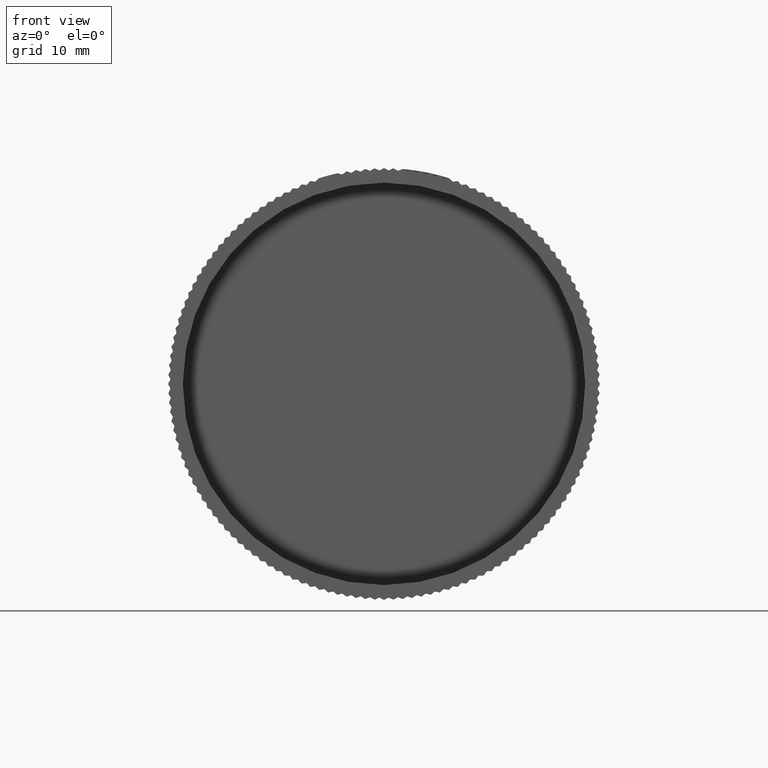
[diagram: clean part render]
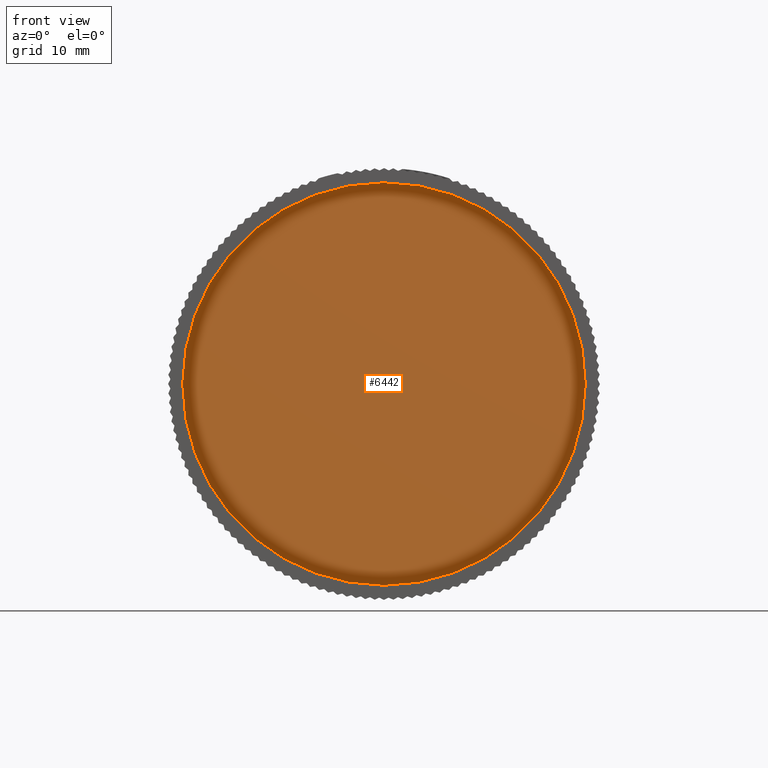
[diagram: same view with one face highlighted and labeled with its STEP entity id]
A machine part, front view. The second image highlights one B-rep face of the part: STEP entity #6442.
In plain terms, the highlighted planar face has unit normal (0, -1, 0).
Its self-contained STEP definition (entity closure, byte-faithful):
#460 = EDGE_CURVE ( 'NONE', #8535, #5071, #23946, .T. ) ;
#962 = DIRECTION ( 'NONE',  ( 0.0000000000000000000, -1.000000000000000000, 0.0000000000000000000 ) ) ;
#5071 = VERTEX_POINT ( 'NONE', #12035 ) ;
#5638 = DIRECTION ( 'NONE',  ( 0.0000000000000000000, -1.000000000000000000, 0.0000000000000000000 ) ) ;
#6442 = ADVANCED_FACE ( 'NONE', ( #32679 ), #42289, .T. ) ;
#7378 = DIRECTION ( 'NONE',  ( 0.0000000000000000000, -0.0000000000000000000, -1.000000000000000000 ) ) ;
#8535 = VERTEX_POINT ( 'NONE', #31650 ) ;
#10471 = ORIENTED_EDGE ( 'NONE', *, *, #460, .T. ) ;
#12035 = CARTESIAN_POINT ( 'NONE',  ( 1.576612217799939400E-016, 0.3779527559055118600, 1.287401574803150000 ) ) ;
#23946 = CIRCLE ( 'NONE', #45134, 1.287401574803150000 ) ;
#24320 = CARTESIAN_POINT ( 'NONE',  ( 0.0000000000000000000, 0.3779527559055118600, 0.0000000000000000000 ) ) ;
#26689 = AXIS2_PLACEMENT_3D ( 'NONE', #24320, #962, #28286 ) ;
#28286 = DIRECTION ( 'NONE',  ( 0.0000000000000000000, 0.0000000000000000000, -1.000000000000000000 ) ) ;
#29095 = CARTESIAN_POINT ( 'NONE',  ( 0.0000000000000000000, 0.3779527559055118600, 0.0000000000000000000 ) ) ;
#29992 = EDGE_CURVE ( 'NONE', #5071, #8535, #44893, .T. ) ;
#30799 = DIRECTION ( 'NONE',  ( 0.0000000000000000000, -1.000000000000000000, 0.0000000000000000000 ) ) ;
#31650 = CARTESIAN_POINT ( 'NONE',  ( 0.0000000000000000000, 0.3779527559055118600, -1.287401574803150000 ) ) ;
#32679 = FACE_OUTER_BOUND ( 'NONE', #36341, .T. ) ;
#32942 = DIRECTION ( 'NONE',  ( 0.0000000000000000000, 0.0000000000000000000, -1.000000000000000000 ) ) ;
#36341 = EDGE_LOOP ( 'NONE', ( #10471, #38377 ) ) ;
#38377 = ORIENTED_EDGE ( 'NONE', *, *, #29992, .T. ) ;
#42289 = PLANE ( 'NONE',  #45912 ) ;
#44893 = CIRCLE ( 'NONE', #26689, 1.287401574803150000 ) ;
#45134 = AXIS2_PLACEMENT_3D ( 'NONE', #29095, #5638, #32942 ) ;
#45912 = AXIS2_PLACEMENT_3D ( 'NONE', #50040, #30799, #7378 ) ;
#50040 = CARTESIAN_POINT ( 'NONE',  ( 1.240649606299212900, 0.3779527559055118600, 0.0000000000000000000 ) ) ;